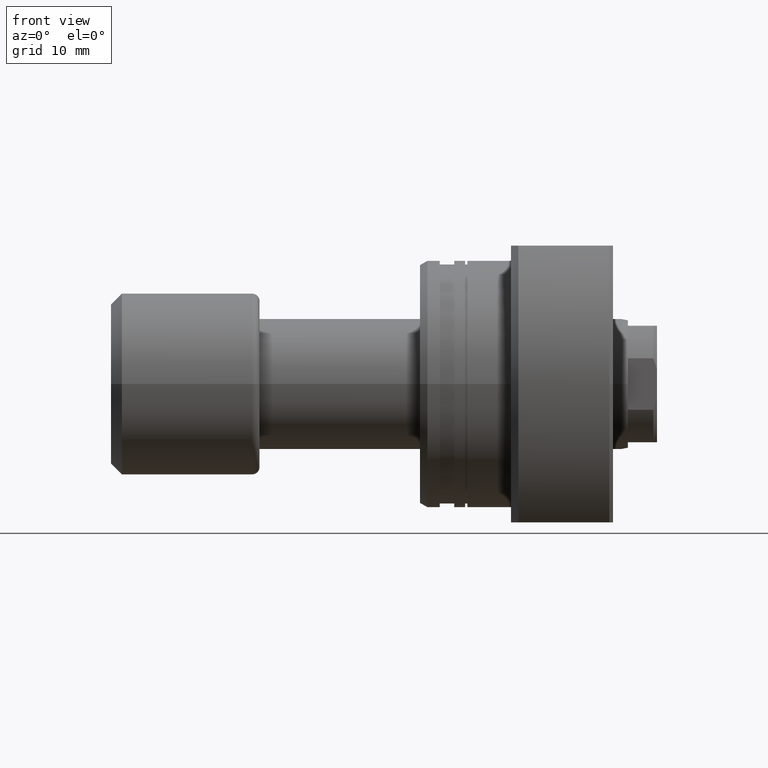
[diagram: clean part render]
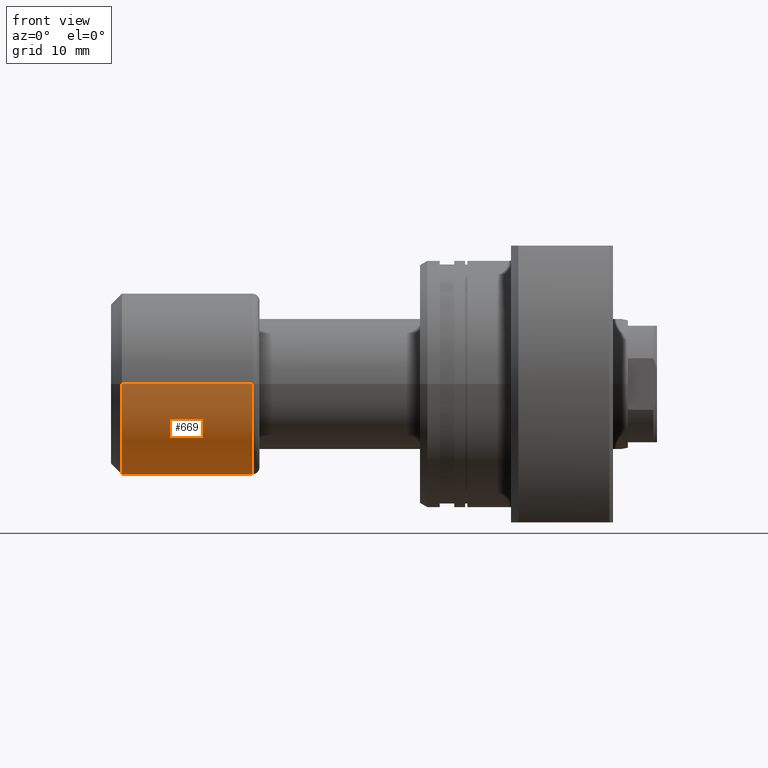
[diagram: same view with one face highlighted and labeled with its STEP entity id]
A machine part, front view. The second image highlights one B-rep face of the part: STEP entity #669.
In plain terms, the highlighted cylindrical surface (partial cylindrical patch) has radius 12.5 mm, axis along (-1, -0, -0).
Its self-contained STEP definition (entity closure, byte-faithful):
#27 = LINE ( 'NONE', #1258, #2138 ) ;
#114 = ORIENTED_EDGE ( 'NONE', *, *, #1652, .F. ) ;
#194 = CYLINDRICAL_SURFACE ( 'NONE', #609, 12.50000000000000000 ) ;
#299 = CIRCLE ( 'NONE', #2141, 12.50000000000000000 ) ;
#362 = DIRECTION ( 'NONE',  ( -1.000000000000000000, -1.069542322069065801E-17, -0.000000000000000000 ) ) ;
#502 = EDGE_CURVE ( 'NONE', #3073, #3060, #1756, .T. ) ;
#609 = AXIS2_PLACEMENT_3D ( 'NONE', #625, #2135, #2000 ) ;
#625 = CARTESIAN_POINT ( 'NONE',  ( 0.000000000000000000, 0.000000000000000000, 0.000000000000000000 ) ) ;
#659 = CARTESIAN_POINT ( 'NONE',  ( 1.500000000000001554, 1.604313483103600319E-17, 0.000000000000000000 ) ) ;
#669 = ADVANCED_FACE ( 'NONE', ( #2437 ), #194, .T. ) ;
#676 = DIRECTION ( 'NONE',  ( -1.000000000000000000, -1.069542322069065801E-17, -0.000000000000000000 ) ) ;
#695 = ORIENTED_EDGE ( 'NONE', *, *, #502, .T. ) ;
#719 = CIRCLE ( 'NONE', #2554, 12.50000000000000000 ) ;
#814 = CARTESIAN_POINT ( 'NONE',  ( 19.40000000000000213, -12.50000000000000000, 0.000000000000000000 ) ) ;
#952 = DIRECTION ( 'NONE',  ( 1.734723475976807094E-17, -1.000000000000000000, 0.000000000000000000 ) ) ;
#1047 = CARTESIAN_POINT ( 'NONE',  ( 1.500000000000001776, -12.50000000000000000, 1.530808498934191521E-15 ) ) ;
#1177 = VECTOR ( 'NONE', #362, 1000.000000000000000 ) ;
#1209 = CARTESIAN_POINT ( 'NONE',  ( 1.500000000000001332, 12.50000000000000000, 0.000000000000000000 ) ) ;
#1248 = CARTESIAN_POINT ( 'NONE',  ( 1.336927902586332490E-16, -12.50000000000000000, 0.000000000000000000 ) ) ;
#1258 = CARTESIAN_POINT ( 'NONE',  ( -1.336927902586332490E-16, 12.50000000000000000, 1.530808498934191521E-15 ) ) ;
#1367 = DIRECTION ( 'NONE',  ( -1.000000000000000000, -1.069542322069065801E-17, -0.000000000000000000 ) ) ;
#1599 = CARTESIAN_POINT ( 'NONE',  ( 19.40000000000000213, 12.50000000000000000, 1.530808498934191521E-15 ) ) ;
#1652 = EDGE_CURVE ( 'NONE', #1959, #2974, #27, .T. ) ;
#1717 = EDGE_LOOP ( 'NONE', ( #114, #1797, #695, #1892 ) ) ;
#1756 = LINE ( 'NONE', #1248, #1177 ) ;
#1797 = ORIENTED_EDGE ( 'NONE', *, *, #2157, .T. ) ;
#1876 = CARTESIAN_POINT ( 'NONE',  ( 19.40000000000000213, 2.074912104813987675E-16, 0.000000000000000000 ) ) ;
#1892 = ORIENTED_EDGE ( 'NONE', *, *, #2174, .F. ) ;
#1940 = DIRECTION ( 'NONE',  ( -1.000000000000000000, -1.069542322069065801E-17, -0.000000000000000000 ) ) ;
#1959 = VERTEX_POINT ( 'NONE', #1599 ) ;
#2000 = DIRECTION ( 'NONE',  ( 1.069542322069065955E-17, -1.000000000000000000, 0.000000000000000000 ) ) ;
#2135 = DIRECTION ( 'NONE',  ( -1.000000000000000000, -1.069542322069065801E-17, -0.000000000000000000 ) ) ;
#2138 = VECTOR ( 'NONE', #1367, 1000.000000000000000 ) ;
#2141 = AXIS2_PLACEMENT_3D ( 'NONE', #1876, #1940, #2617 ) ;
#2157 = EDGE_CURVE ( 'NONE', #1959, #3073, #299, .T. ) ;
#2174 = EDGE_CURVE ( 'NONE', #2974, #3060, #719, .T. ) ;
#2437 = FACE_OUTER_BOUND ( 'NONE', #1717, .T. ) ;
#2554 = AXIS2_PLACEMENT_3D ( 'NONE', #659, #676, #952 ) ;
#2617 = DIRECTION ( 'NONE',  ( 0.000000000000000000, -1.000000000000000000, 0.000000000000000000 ) ) ;
#2974 = VERTEX_POINT ( 'NONE', #1209 ) ;
#3060 = VERTEX_POINT ( 'NONE', #1047 ) ;
#3073 = VERTEX_POINT ( 'NONE', #814 ) ;